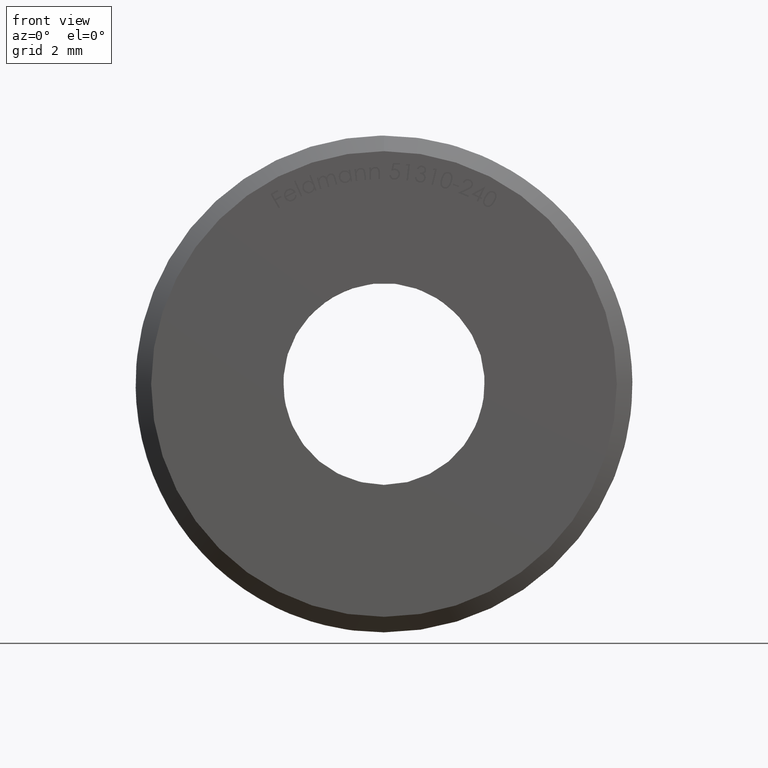
[diagram: clean part render]
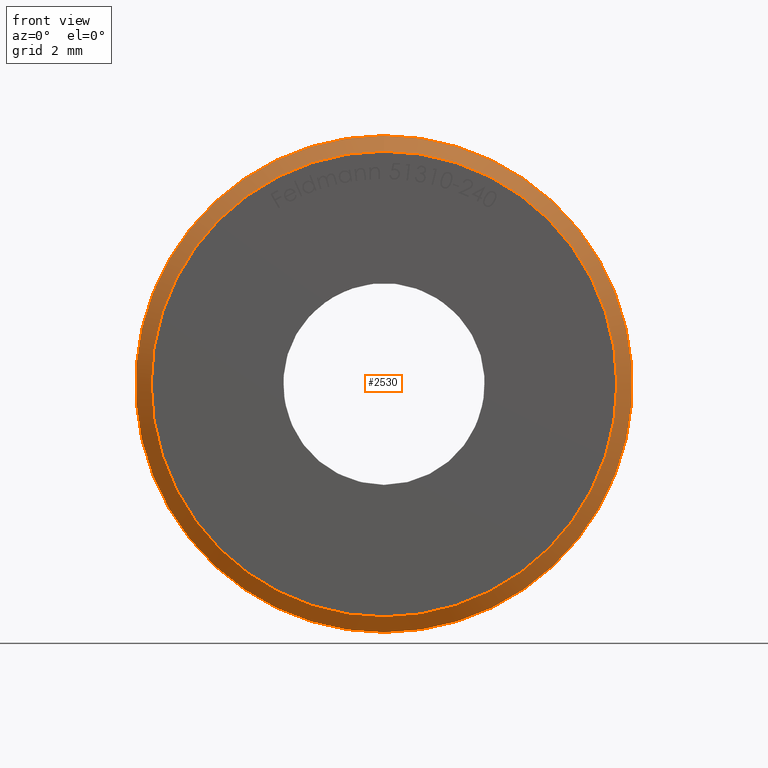
[diagram: same view with one face highlighted and labeled with its STEP entity id]
A machine part, front view. The second image highlights one B-rep face of the part: STEP entity #2530.
In plain terms, the highlighted conical surface has half-angle 45 deg.
Its self-contained STEP definition (entity closure, byte-faithful):
#874 = CARTESIAN_POINT ( 'NONE',  ( 0.000000000000000000, 0.5000000000000038858, 0.000000000000000000 ) ) ;
#893 = AXIS2_PLACEMENT_3D ( 'NONE', #5327, #11005, #4422 ) ;
#1314 = VERTEX_POINT ( 'NONE', #6214 ) ;
#2530 = ADVANCED_FACE ( 'NONE', ( #7900, #3036 ), #3337, .T. ) ;
#3036 = FACE_OUTER_BOUND ( 'NONE', #4717, .T. ) ;
#3337 = CONICAL_SURFACE ( 'NONE', #6272, 8.000000000000000000, 0.7853981633974500554 ) ;
#3343 = EDGE_CURVE ( 'NONE', #1314, #1314, #7885, .T. ) ;
#3770 = DIRECTION ( 'NONE',  ( 0.000000000000000000, 0.000000000000000000, 1.000000000000000000 ) ) ;
#3984 = VERTEX_POINT ( 'NONE', #9194 ) ;
#4422 = DIRECTION ( 'NONE',  ( 0.000000000000000000, 0.000000000000000000, 1.000000000000000000 ) ) ;
#4717 = EDGE_LOOP ( 'NONE', ( #6033 ) ) ;
#5327 = CARTESIAN_POINT ( 'NONE',  ( 0.000000000000000000, 0.000000000000000000, 0.000000000000000000 ) ) ;
#5647 = CIRCLE ( 'NONE', #9422, 8.000000000000000000 ) ;
#6033 = ORIENTED_EDGE ( 'NONE', *, *, #6892, .F. ) ;
#6214 = CARTESIAN_POINT ( 'NONE',  ( 0.000000000000000000, 0.000000000000000000, 7.499999999999994671 ) ) ;
#6272 = AXIS2_PLACEMENT_3D ( 'NONE', #874, #8398, #3770 ) ;
#6892 = EDGE_CURVE ( 'NONE', #3984, #3984, #5647, .T. ) ;
#7116 = ORIENTED_EDGE ( 'NONE', *, *, #3343, .F. ) ;
#7308 = CARTESIAN_POINT ( 'NONE',  ( 0.000000000000000000, 0.5000000000000038858, 0.000000000000000000 ) ) ;
#7885 = CIRCLE ( 'NONE', #893, 7.499999999999994671 ) ;
#7900 = FACE_BOUND ( 'NONE', #8526, .T. ) ;
#8398 = DIRECTION ( 'NONE',  ( -0.000000000000000000, 1.000000000000000000, -0.000000000000000000 ) ) ;
#8526 = EDGE_LOOP ( 'NONE', ( #7116 ) ) ;
#9044 = DIRECTION ( 'NONE',  ( 0.000000000000000000, 0.000000000000000000, 1.000000000000000000 ) ) ;
#9194 = CARTESIAN_POINT ( 'NONE',  ( 0.000000000000000000, 0.5000000000000038858, 8.000000000000000000 ) ) ;
#9422 = AXIS2_PLACEMENT_3D ( 'NONE', #7308, #12020, #9044 ) ;
#11005 = DIRECTION ( 'NONE',  ( -0.000000000000000000, -1.000000000000000000, -0.000000000000000000 ) ) ;
#12020 = DIRECTION ( 'NONE',  ( -0.000000000000000000, 1.000000000000000000, -0.000000000000000000 ) ) ;